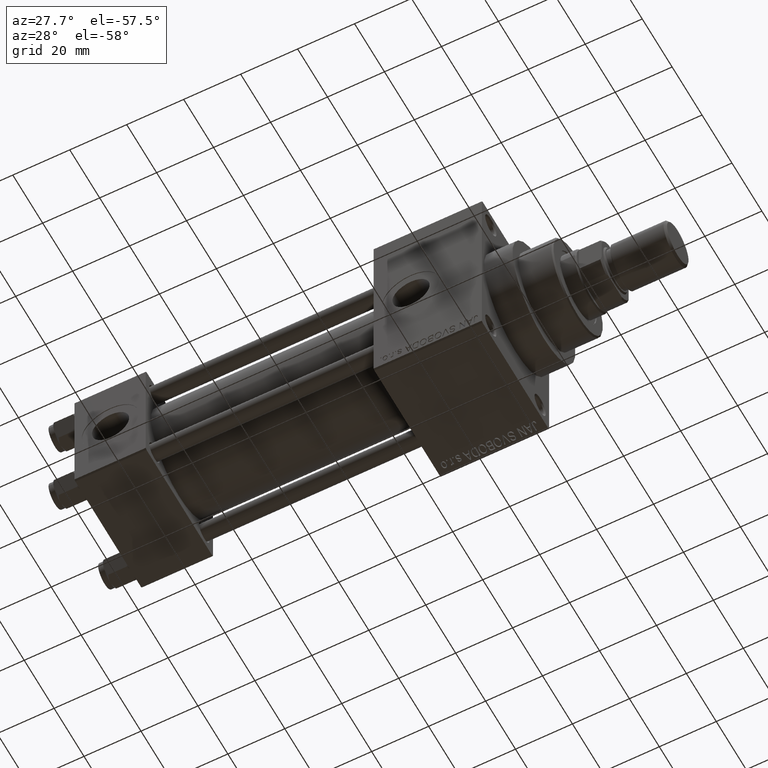
[diagram: clean part render]
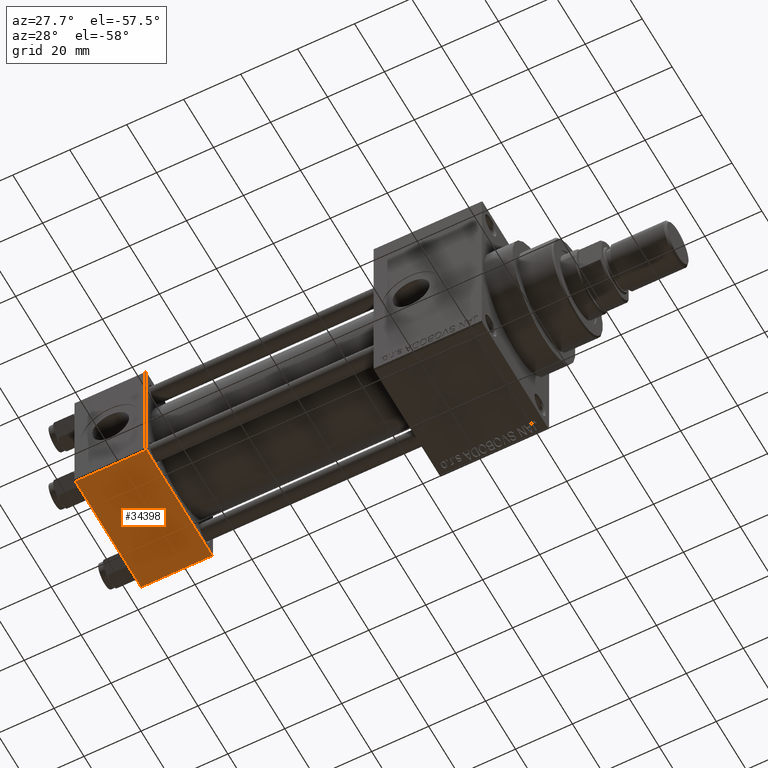
[diagram: same view with one face highlighted and labeled with its STEP entity id]
A machine part, auxiliary view. The second image highlights one B-rep face of the part: STEP entity #34398.
In plain terms, the highlighted planar face has unit normal (0, 0, -1).
Its self-contained STEP definition (entity closure, byte-faithful):
#672 = CARTESIAN_POINT ( 'NONE',  ( 0.000000000000000000, 21.99999999999999289, -22.49999999999999645 ) ) ;
#826 = VERTEX_POINT ( 'NONE', #672 ) ;
#2576 = EDGE_LOOP ( 'NONE', ( #23476, #44024, #46048, #45873 ) ) ;
#3440 = AXIS2_PLACEMENT_3D ( 'NONE', #42918, #23859, #5097 ) ;
#5097 = DIRECTION ( 'NONE',  ( 0.000000000000000000, 1.000000000000000000, 2.312964634635742957E-16 ) ) ;
#5743 = CARTESIAN_POINT ( 'NONE',  ( 25.00000000000000000, 21.99999999999999289, -22.49999999999999645 ) ) ;
#6336 = VECTOR ( 'NONE', #18605, 1000.000000000000000 ) ;
#11589 = LINE ( 'NONE', #34127, #6336 ) ;
#12740 = DIRECTION ( 'NONE',  ( 0.000000000000000000, -1.000000000000000000, -2.312964634635742957E-16 ) ) ;
#12999 = DIRECTION ( 'NONE',  ( -1.000000000000000000, 0.000000000000000000, 0.000000000000000000 ) ) ;
#14188 = VECTOR ( 'NONE', #21447, 1000.000000000000000 ) ;
#16158 = VERTEX_POINT ( 'NONE', #29217 ) ;
#16361 = PLANE ( 'NONE',  #3440 ) ;
#16745 = LINE ( 'NONE', #32020, #18564 ) ;
#17236 = LINE ( 'NONE', #31523, #31738 ) ;
#18513 = EDGE_CURVE ( 'NONE', #28161, #16158, #16745, .T. ) ;
#18564 = VECTOR ( 'NONE', #12999, 1000.000000000000000 ) ;
#18605 = DIRECTION ( 'NONE',  ( 1.000000000000000000, 0.000000000000000000, 0.000000000000000000 ) ) ;
#21447 = DIRECTION ( 'NONE',  ( 0.000000000000000000, -1.000000000000000000, -2.312964634635742957E-16 ) ) ;
#23476 = ORIENTED_EDGE ( 'NONE', *, *, #46702, .F. ) ;
#23859 = DIRECTION ( 'NONE',  ( 0.000000000000000000, 2.312964634635742957E-16, -1.000000000000000000 ) ) ;
#28161 = VERTEX_POINT ( 'NONE', #31901 ) ;
#28964 = LINE ( 'NONE', #36731, #14188 ) ;
#29217 = CARTESIAN_POINT ( 'NONE',  ( 0.000000000000000000, -21.99999999999997158, -22.50000000000000711 ) ) ;
#31523 = CARTESIAN_POINT ( 'NONE',  ( 0.000000000000000000, 22.50000000000000000, -22.49999999999999645 ) ) ;
#31738 = VECTOR ( 'NONE', #12740, 1000.000000000000000 ) ;
#31901 = CARTESIAN_POINT ( 'NONE',  ( 25.00000000000000000, -21.99999999999997158, -22.50000000000000711 ) ) ;
#32020 = CARTESIAN_POINT ( 'NONE',  ( 0.000000000000000000, -21.99999999999998579, -22.50000000000000711 ) ) ;
#34127 = CARTESIAN_POINT ( 'NONE',  ( 25.00000000000000000, 21.99999999999999289, -22.49999999999999645 ) ) ;
#34398 = ADVANCED_FACE ( 'NONE', ( #39649 ), #16361, .T. ) ;
#36731 = CARTESIAN_POINT ( 'NONE',  ( 25.00000000000000000, 22.50000000000000000, -22.49999999999999645 ) ) ;
#39649 = FACE_OUTER_BOUND ( 'NONE', #2576, .T. ) ;
#42274 = VERTEX_POINT ( 'NONE', #5743 ) ;
#42918 = CARTESIAN_POINT ( 'NONE',  ( 25.00000000000000000, 22.50000000000000000, -22.49999999999999645 ) ) ;
#44024 = ORIENTED_EDGE ( 'NONE', *, *, #48669, .T. ) ;
#44432 = EDGE_CURVE ( 'NONE', #42274, #28161, #28964, .T. ) ;
#45873 = ORIENTED_EDGE ( 'NONE', *, *, #18513, .T. ) ;
#46048 = ORIENTED_EDGE ( 'NONE', *, *, #44432, .T. ) ;
#46702 = EDGE_CURVE ( 'NONE', #826, #16158, #17236, .T. ) ;
#48669 = EDGE_CURVE ( 'NONE', #826, #42274, #11589, .T. ) ;